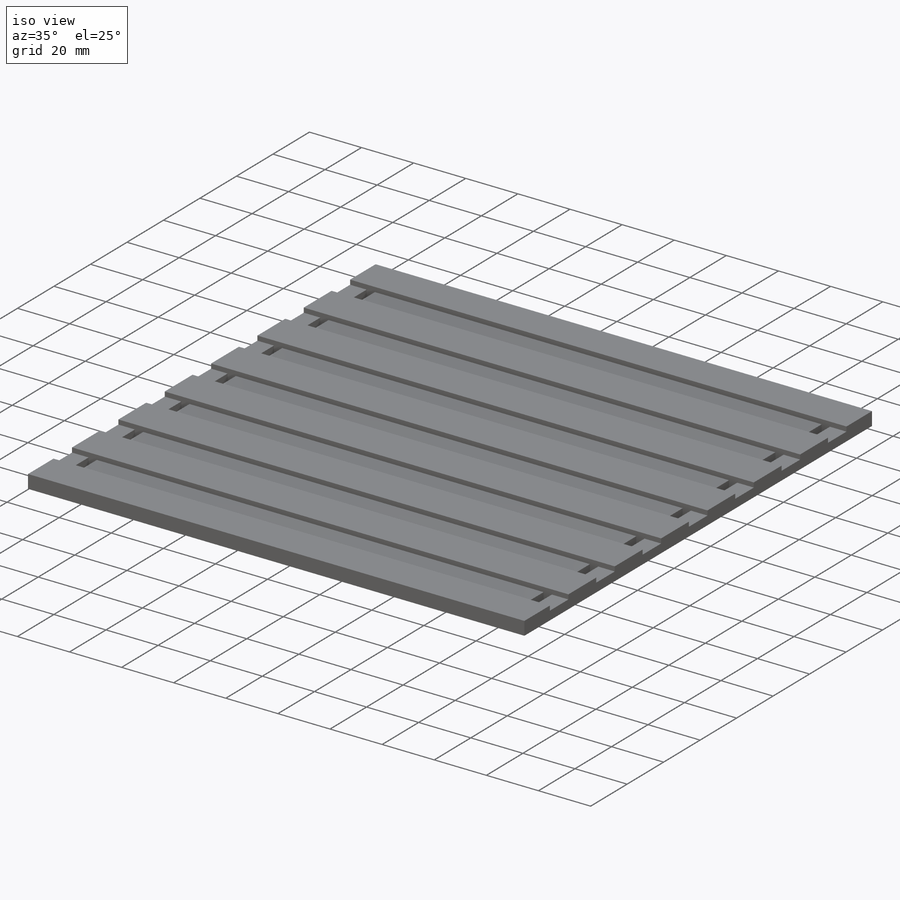
[diagram: iso view]
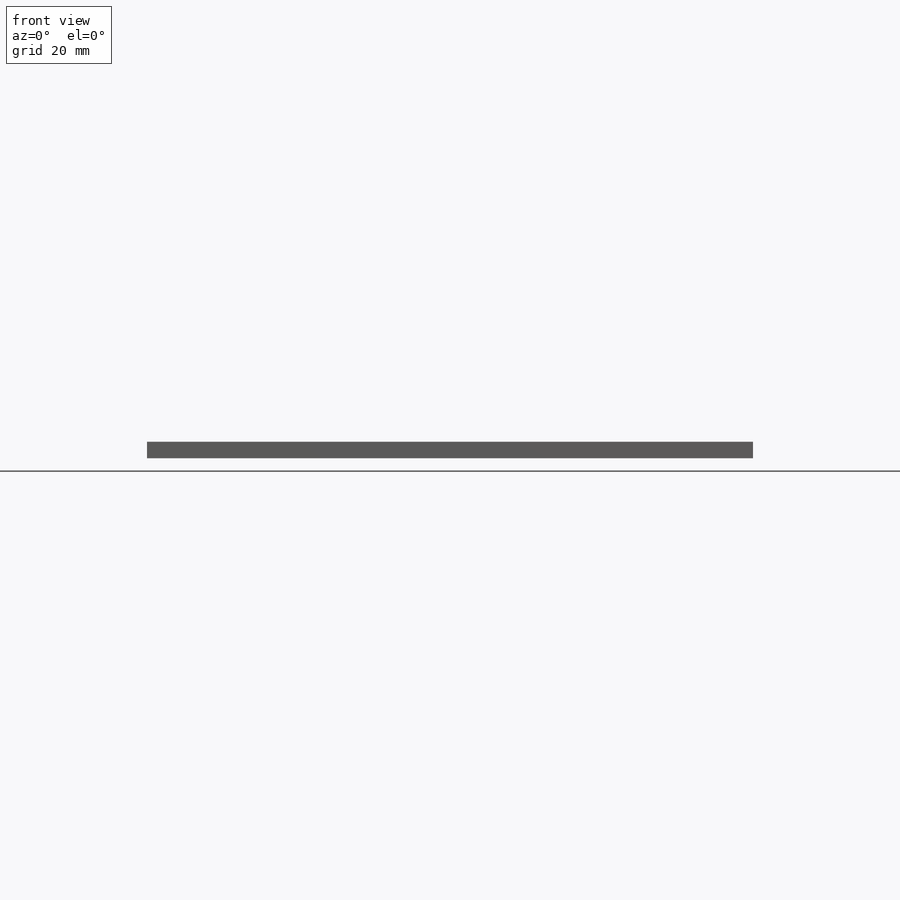
[diagram: front view]
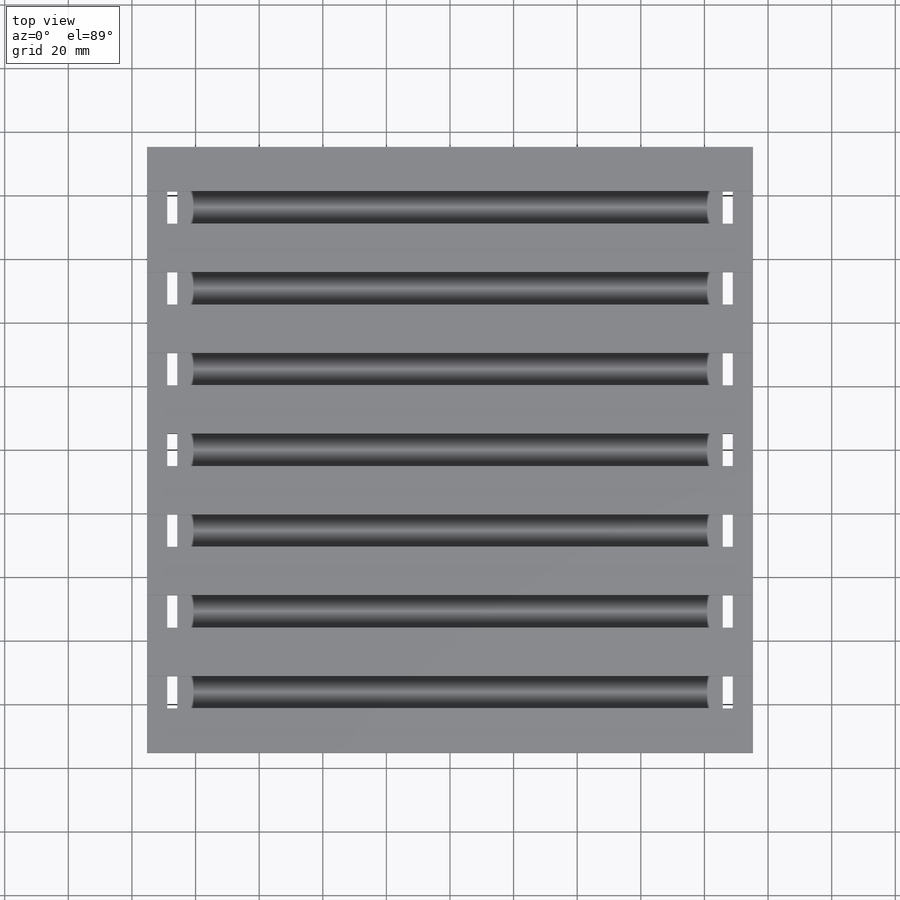
[diagram: top view]
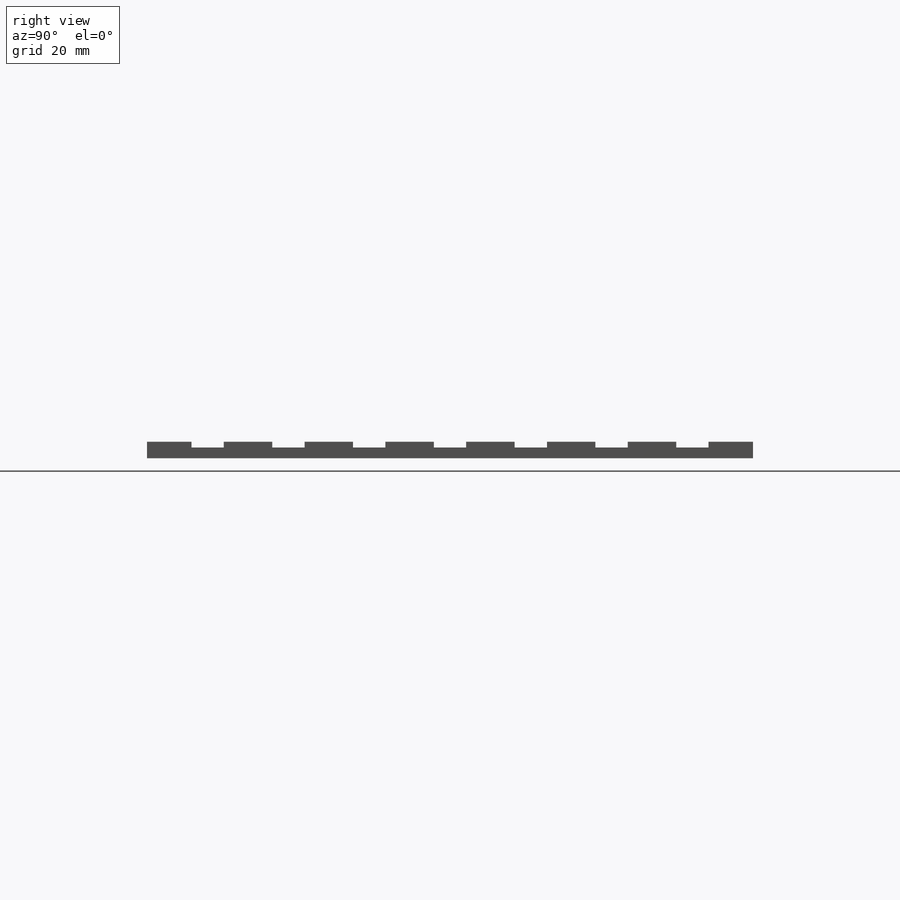
[diagram: right view]
SOLIDWORKS PART (.sldprt)
format: sldprt  version: not decoded by parser v0  size: 607,232 bytes
history: native  units: mm
features: sketch x3, cut_extrude x2, material x1, extrude x1, pattern_linear x1 (+13 scaffold rows collapsed)
feature tree (21):
  scaffold x13  (default folders/planes/origin — collapsed)
  material  "Maple"
  sketch  "Sketch1"  dims[D1=190.5mm]
  extrude  "Boss-Extrude1"  Depth=5.159375mm
  sketch  "Sketch2"  dims[D1=10.16mm D2=190.5mm D3=19.05mm D4=7.0]
  cut_extrude  "Cut-Extrude1"  Depth=1.778mm
  sketch  "Sketch3"  dims[D1=3.175mm D2=6.35mm]
  cut_extrude  "Cut-Extrude3"  [1 undecoded]
  pattern_linear  "LPattern1"  Count1=7 Count2=1 Spacing1=25.4mm Spacing2=2.54mm
decode coverage: 6 of 7 modeling features carry decoded parameters
note: 1 parameter value undecoded
note: suppression state not decoded; provenance and decode notes live in map.json
